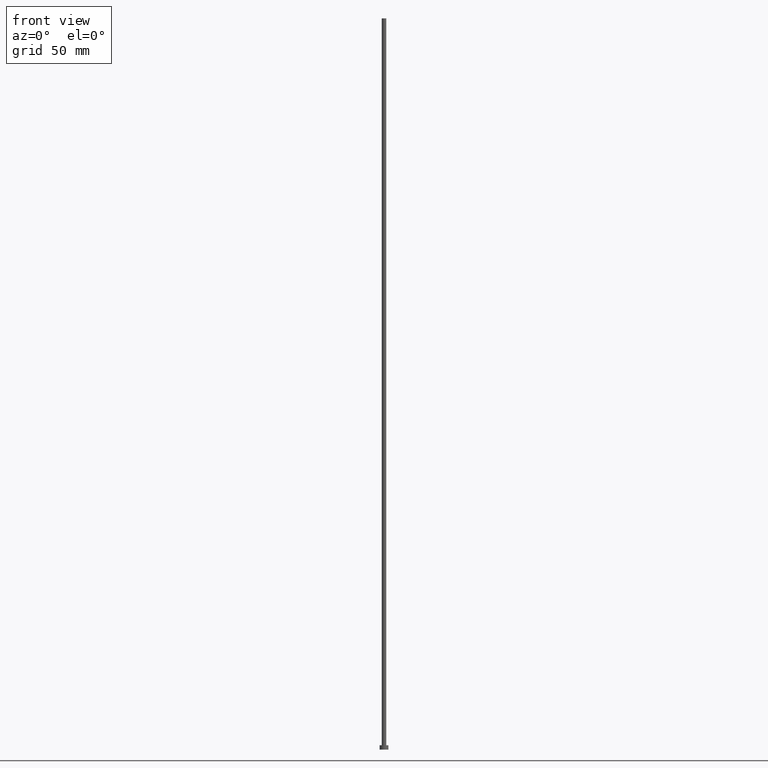
[diagram: clean part render]
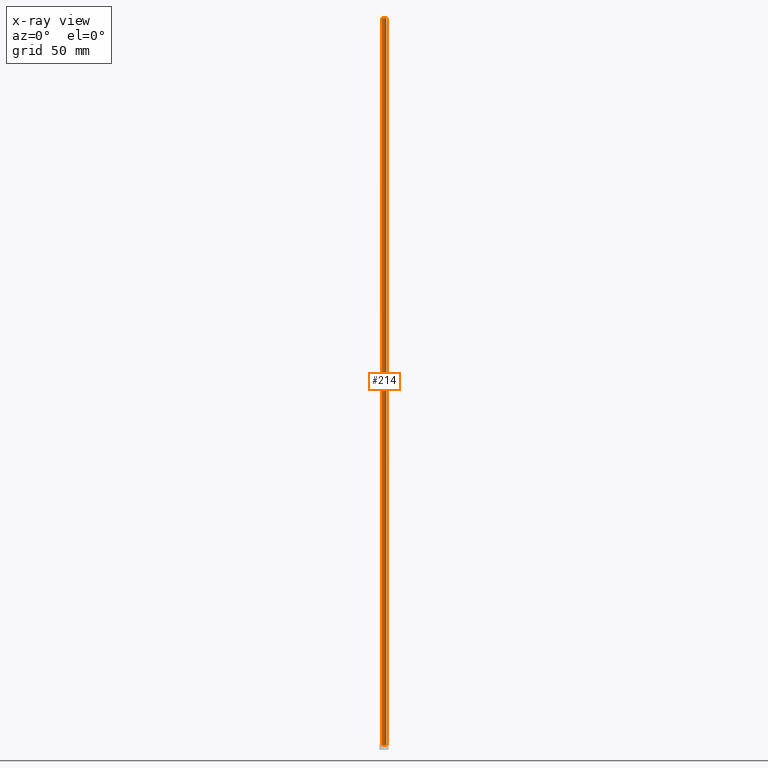
[diagram: x-ray — body ghosted, one internal face saturated and labeled with its STEP entity id]
A machine part, front view, then the same camera in x-ray: the body is ghosted and one INTERNAL B-rep face — a face not visible from any outside direction — is saturated and labeled: STEP entity #214.
In plain terms, the highlighted cylindrical surface (edge-blend (fillet) strip) has radius 1.5 mm, axis along (-0, -0, -1).
Its self-contained STEP definition (entity closure, byte-faithful):
#3 = DIRECTION ( 'NONE',  ( 1.000000000000000000, 0.000000000000000000, 0.000000000000000000 ) ) ;
#5 = VERTEX_POINT ( 'NONE', #154 ) ;
#6 = CARTESIAN_POINT ( 'NONE',  ( -1.500000000000000222, 0.000000000000000000, 3.000000000000000000 ) ) ;
#8 = DIRECTION ( 'NONE',  ( -1.000000000000000000, 0.000000000000000000, 0.000000000000000000 ) ) ;
#20 = DIRECTION ( 'NONE',  ( 0.000000000000000000, 0.000000000000000000, 1.000000000000000000 ) ) ;
#30 = VECTOR ( 'NONE', #73, 1000.000000000000000 ) ;
#49 = CARTESIAN_POINT ( 'NONE',  ( 0.000000000000000000, 0.000000000000000000, 500.0000000000000000 ) ) ;
#50 = AXIS2_PLACEMENT_3D ( 'NONE', #49, #184, #3 ) ;
#51 = EDGE_CURVE ( 'NONE', #5, #91, #175, .T. ) ;
#55 = ORIENTED_EDGE ( 'NONE', *, *, #51, .T. ) ;
#57 = FACE_OUTER_BOUND ( 'NONE', #134, .T. ) ;
#73 = DIRECTION ( 'NONE',  ( -0.000000000000000000, -0.000000000000000000, -1.000000000000000000 ) ) ;
#88 = LINE ( 'NONE', #245, #30 ) ;
#91 = VERTEX_POINT ( 'NONE', #6 ) ;
#95 = VERTEX_POINT ( 'NONE', #187 ) ;
#100 = CARTESIAN_POINT ( 'NONE',  ( 0.000000000000000000, 0.000000000000000000, 3.000000000000000000 ) ) ;
#102 = DIRECTION ( 'NONE',  ( -0.000000000000000000, -0.000000000000000000, -1.000000000000000000 ) ) ;
#106 = ORIENTED_EDGE ( 'NONE', *, *, #139, .F. ) ;
#116 = VECTOR ( 'NONE', #102, 1000.000000000000000 ) ;
#122 = VERTEX_POINT ( 'NONE', #158 ) ;
#127 = DIRECTION ( 'NONE',  ( -0.000000000000000000, -0.000000000000000000, -1.000000000000000000 ) ) ;
#128 = AXIS2_PLACEMENT_3D ( 'NONE', #144, #127, #8 ) ;
#134 = EDGE_LOOP ( 'NONE', ( #136, #183, #55, #106 ) ) ;
#136 = ORIENTED_EDGE ( 'NONE', *, *, #185, .F. ) ;
#139 = EDGE_CURVE ( 'NONE', #122, #91, #164, .T. ) ;
#144 = CARTESIAN_POINT ( 'NONE',  ( 0.000000000000000000, 0.000000000000000000, 500.0000000000000000 ) ) ;
#154 = CARTESIAN_POINT ( 'NONE',  ( 1.500000000000000222, 1.836970198721029934E-16, 3.000000000000000000 ) ) ;
#158 = CARTESIAN_POINT ( 'NONE',  ( -1.500000000000000222, 0.000000000000000000, 500.0000000000000000 ) ) ;
#164 = LINE ( 'NONE', #218, #116 ) ;
#175 = CIRCLE ( 'NONE', #229, 1.500000000000000222 ) ;
#179 = DIRECTION ( 'NONE',  ( 1.000000000000000000, 0.000000000000000000, 0.000000000000000000 ) ) ;
#183 = ORIENTED_EDGE ( 'NONE', *, *, #197, .T. ) ;
#184 = DIRECTION ( 'NONE',  ( 0.000000000000000000, 0.000000000000000000, 1.000000000000000000 ) ) ;
#185 = EDGE_CURVE ( 'NONE', #95, #122, #244, .T. ) ;
#187 = CARTESIAN_POINT ( 'NONE',  ( 1.500000000000000222, 1.836970198721029934E-16, 500.0000000000000000 ) ) ;
#197 = EDGE_CURVE ( 'NONE', #95, #5, #88, .T. ) ;
#214 = ADVANCED_FACE ( 'NONE', ( #57 ), #242, .T. ) ;
#218 = CARTESIAN_POINT ( 'NONE',  ( -1.500000000000000222, 0.000000000000000000, 500.0000000000000000 ) ) ;
#229 = AXIS2_PLACEMENT_3D ( 'NONE', #100, #20, #179 ) ;
#242 = CYLINDRICAL_SURFACE ( 'NONE', #128, 1.500000000000000222 ) ;
#244 = CIRCLE ( 'NONE', #50, 1.500000000000000222 ) ;
#245 = CARTESIAN_POINT ( 'NONE',  ( 1.500000000000000222, 1.836970198721029934E-16, 500.0000000000000000 ) ) ;